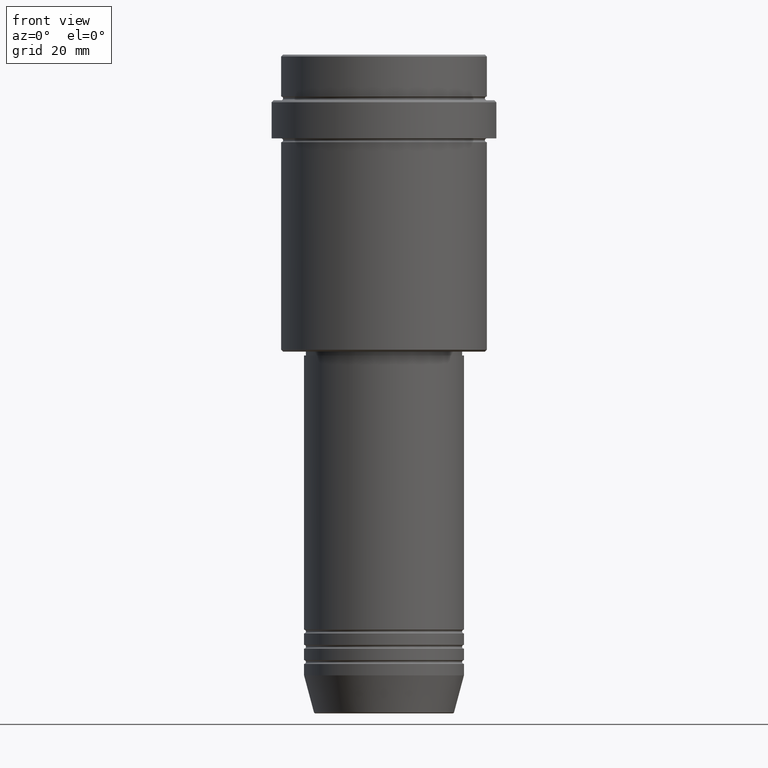
[diagram: clean part render]
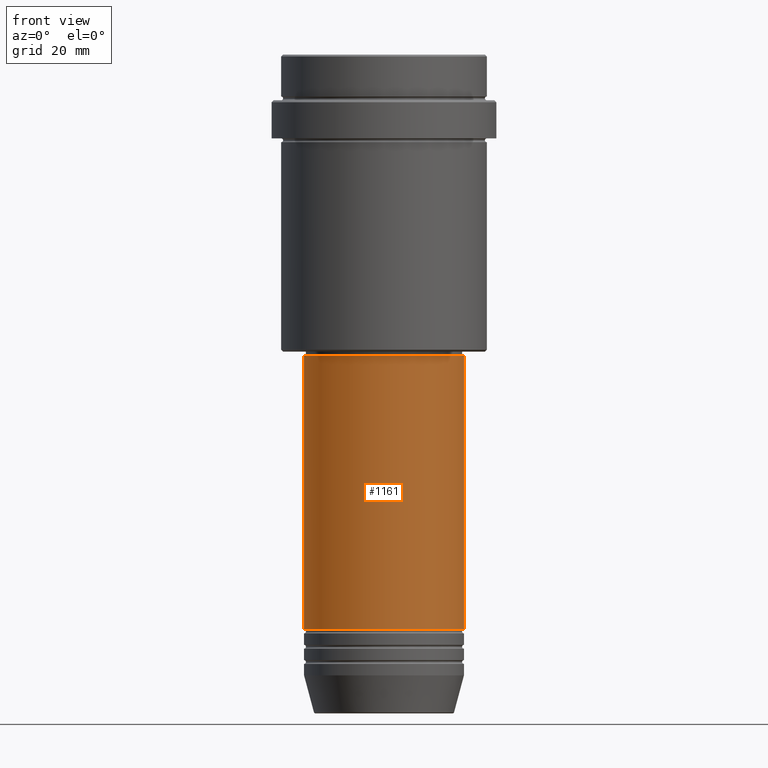
[diagram: same view with one face highlighted and labeled with its STEP entity id]
A machine part, front view. The second image highlights one B-rep face of the part: STEP entity #1161.
In plain terms, the highlighted cylindrical surface (partial cylindrical patch) has radius 21 mm, axis along (-0, -0, 1).
Its self-contained STEP definition (entity closure, byte-faithful):
#16 = EDGE_CURVE ( 'NONE', #442, #657, #590, .T. ) ;
#25 = DIRECTION ( 'NONE',  ( 1.000000000000000000, 0.000000000000000000, 0.000000000000000000 ) ) ;
#107 = ORIENTED_EDGE ( 'NONE', *, *, #16, .F. ) ;
#119 = AXIS2_PLACEMENT_3D ( 'NONE', #355, #792, #1359 ) ;
#238 = VERTEX_POINT ( 'NONE', #778 ) ;
#300 = LINE ( 'NONE', #417, #1144 ) ;
#310 = CARTESIAN_POINT ( 'NONE',  ( 0.000000000000000000, 0.000000000000000000, -78.99999999999998579 ) ) ;
#355 = CARTESIAN_POINT ( 'NONE',  ( 0.000000000000000000, 0.000000000000000000, -150.9999999999998579 ) ) ;
#417 = CARTESIAN_POINT ( 'NONE',  ( 21.00000000000000000, 0.000000000000000000, 0.000000000000000000 ) ) ;
#442 = VERTEX_POINT ( 'NONE', #1265 ) ;
#490 = DIRECTION ( 'NONE',  ( -0.000000000000000000, -0.000000000000000000, 1.000000000000000000 ) ) ;
#559 = ORIENTED_EDGE ( 'NONE', *, *, #595, .F. ) ;
#590 = LINE ( 'NONE', #596, #1379 ) ;
#595 = EDGE_CURVE ( 'NONE', #657, #923, #833, .T. ) ;
#596 = CARTESIAN_POINT ( 'NONE',  ( -21.00000000000000000, 2.571758278209441661E-15, 0.000000000000000000 ) ) ;
#610 = ORIENTED_EDGE ( 'NONE', *, *, #961, .T. ) ;
#655 = CARTESIAN_POINT ( 'NONE',  ( 0.000000000000000000, 0.000000000000000000, 0.000000000000000000 ) ) ;
#657 = VERTEX_POINT ( 'NONE', #786 ) ;
#739 = EDGE_LOOP ( 'NONE', ( #107, #1296, #610, #559 ) ) ;
#740 = DIRECTION ( 'NONE',  ( -0.000000000000000000, -0.000000000000000000, 1.000000000000000000 ) ) ;
#773 = CYLINDRICAL_SURFACE ( 'NONE', #1220, 21.00000000000000000 ) ;
#778 = CARTESIAN_POINT ( 'NONE',  ( 21.00000000000000000, 0.000000000000000000, -150.9999999999998579 ) ) ;
#786 = CARTESIAN_POINT ( 'NONE',  ( -21.00000000000000000, 2.571758278209441661E-15, -78.99999999999998579 ) ) ;
#792 = DIRECTION ( 'NONE',  ( -0.000000000000000000, -0.000000000000000000, 1.000000000000000000 ) ) ;
#833 = CIRCLE ( 'NONE', #1284, 21.00000000000000000 ) ;
#855 = EDGE_CURVE ( 'NONE', #442, #238, #1219, .T. ) ;
#923 = VERTEX_POINT ( 'NONE', #951 ) ;
#951 = CARTESIAN_POINT ( 'NONE',  ( 21.00000000000000000, 0.000000000000000000, -78.99999999999998579 ) ) ;
#961 = EDGE_CURVE ( 'NONE', #238, #923, #300, .T. ) ;
#968 = DIRECTION ( 'NONE',  ( -0.000000000000000000, -0.000000000000000000, 1.000000000000000000 ) ) ;
#999 = FACE_OUTER_BOUND ( 'NONE', #739, .T. ) ;
#1084 = DIRECTION ( 'NONE',  ( 1.000000000000000000, 0.000000000000000000, 0.000000000000000000 ) ) ;
#1144 = VECTOR ( 'NONE', #740, 1000.000000000000000 ) ;
#1161 = ADVANCED_FACE ( 'NONE', ( #999 ), #773, .T. ) ;
#1219 = CIRCLE ( 'NONE', #119, 21.00000000000000000 ) ;
#1220 = AXIS2_PLACEMENT_3D ( 'NONE', #655, #1342, #25 ) ;
#1265 = CARTESIAN_POINT ( 'NONE',  ( -21.00000000000000000, 2.571758278209441661E-15, -150.9999999999998579 ) ) ;
#1284 = AXIS2_PLACEMENT_3D ( 'NONE', #310, #968, #1084 ) ;
#1296 = ORIENTED_EDGE ( 'NONE', *, *, #855, .T. ) ;
#1342 = DIRECTION ( 'NONE',  ( -0.000000000000000000, -0.000000000000000000, 1.000000000000000000 ) ) ;
#1359 = DIRECTION ( 'NONE',  ( 1.000000000000000000, 0.000000000000000000, 0.000000000000000000 ) ) ;
#1379 = VECTOR ( 'NONE', #490, 1000.000000000000000 ) ;